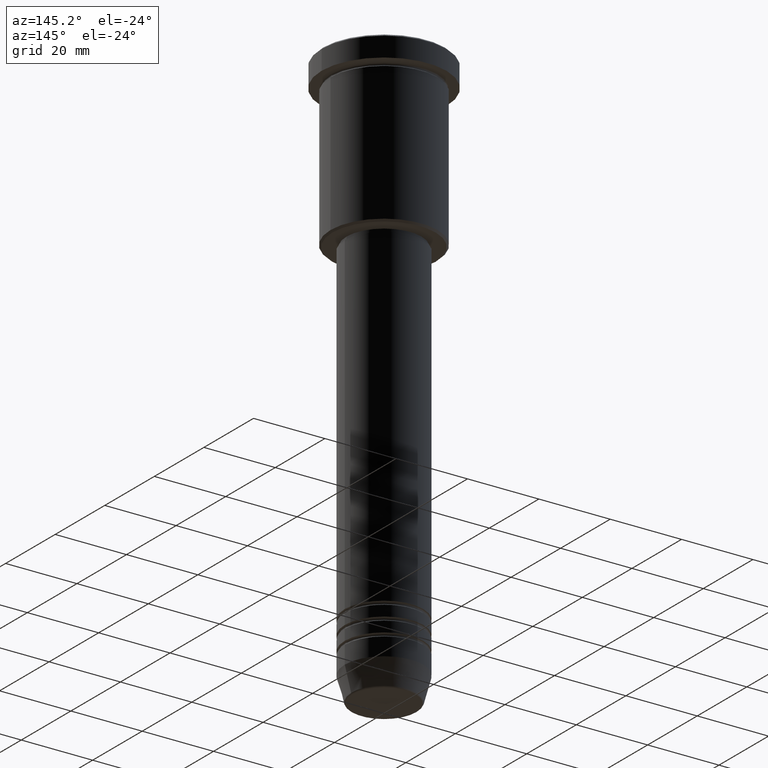
[diagram: clean part render]
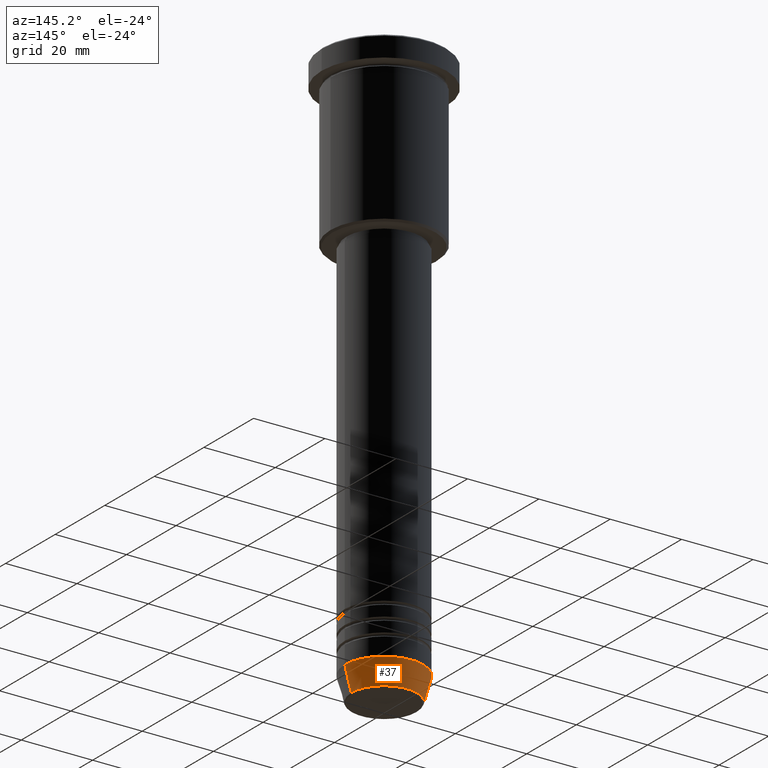
[diagram: same view with one face highlighted and labeled with its STEP entity id]
A machine part, auxiliary view. The second image highlights one B-rep face of the part: STEP entity #37.
In plain terms, the highlighted conical surface has half-angle 15 deg.
Its self-contained STEP definition (entity closure, byte-faithful):
#16 = ORIENTED_EDGE ( 'NONE', *, *, #826, .T. ) ;
#29 = EDGE_LOOP ( 'NONE', ( #16, #833, #995, #440 ) ) ;
#37 = ADVANCED_FACE ( 'NONE', ( #583 ), #1075, .T. ) ;
#38 = LINE ( 'NONE', #954, #415 ) ;
#84 = CARTESIAN_POINT ( 'NONE',  ( -11.00000000000000000, 1.347111479062088405E-15, -154.0000000000000284 ) ) ;
#98 = CARTESIAN_POINT ( 'NONE',  ( 11.00000000000000000, 0.000000000000000000, -154.0000000000000284 ) ) ;
#121 = EDGE_CURVE ( 'NONE', #187, #974, #257, .T. ) ;
#124 = CARTESIAN_POINT ( 'NONE',  ( 0.000000000000000000, 0.000000000000000000, -154.0000000000000284 ) ) ;
#128 = DIRECTION ( 'NONE',  ( 1.000000000000000000, 0.000000000000000000, 0.000000000000000000 ) ) ;
#131 = CARTESIAN_POINT ( 'NONE',  ( 0.000000000000000000, 0.000000000000000000, -154.0000000000000284 ) ) ;
#187 = VERTEX_POINT ( 'NONE', #98 ) ;
#257 = CIRCLE ( 'NONE', #503, 11.00000000000000000 ) ;
#305 = CARTESIAN_POINT ( 'NONE',  ( 0.000000000000000000, 0.000000000000000000, -160.6294095225512706 ) ) ;
#330 = VERTEX_POINT ( 'NONE', #937 ) ;
#391 = EDGE_CURVE ( 'NONE', #330, #187, #38, .T. ) ;
#415 = VECTOR ( 'NONE', #1153, 1000.000000000000000 ) ;
#440 = ORIENTED_EDGE ( 'NONE', *, *, #391, .F. ) ;
#503 = AXIS2_PLACEMENT_3D ( 'NONE', #131, #967, #881 ) ;
#511 = DIRECTION ( 'NONE',  ( -0.2588190451025213501, 3.169619151431772337E-17, 0.9659258262890680902 ) ) ;
#557 = AXIS2_PLACEMENT_3D ( 'NONE', #124, #952, #769 ) ;
#559 = AXIS2_PLACEMENT_3D ( 'NONE', #305, #948, #128 ) ;
#583 = FACE_OUTER_BOUND ( 'NONE', #29, .T. ) ;
#586 = LINE ( 'NONE', #880, #1102 ) ;
#611 = CARTESIAN_POINT ( 'NONE',  ( -9.223655072137189492, 1.238341722557647202E-15, -160.6294095225512706 ) ) ;
#658 = EDGE_CURVE ( 'NONE', #1043, #974, #586, .T. ) ;
#758 = CIRCLE ( 'NONE', #559, 9.223655072137189492 ) ;
#769 = DIRECTION ( 'NONE',  ( 1.000000000000000000, 0.000000000000000000, 0.000000000000000000 ) ) ;
#826 = EDGE_CURVE ( 'NONE', #330, #1043, #758, .T. ) ;
#833 = ORIENTED_EDGE ( 'NONE', *, *, #658, .T. ) ;
#880 = CARTESIAN_POINT ( 'NONE',  ( -11.00000000000000000, 1.347111479062088405E-15, -154.0000000000000284 ) ) ;
#881 = DIRECTION ( 'NONE',  ( 1.000000000000000000, 0.000000000000000000, 0.000000000000000000 ) ) ;
#937 = CARTESIAN_POINT ( 'NONE',  ( 9.223655072137189492, 0.000000000000000000, -160.6294095225512706 ) ) ;
#948 = DIRECTION ( 'NONE',  ( -0.000000000000000000, -0.000000000000000000, 1.000000000000000000 ) ) ;
#952 = DIRECTION ( 'NONE',  ( -0.000000000000000000, -0.000000000000000000, 1.000000000000000000 ) ) ;
#954 = CARTESIAN_POINT ( 'NONE',  ( 11.00000000000000000, 0.000000000000000000, -154.0000000000000284 ) ) ;
#967 = DIRECTION ( 'NONE',  ( -0.000000000000000000, -0.000000000000000000, 1.000000000000000000 ) ) ;
#974 = VERTEX_POINT ( 'NONE', #84 ) ;
#995 = ORIENTED_EDGE ( 'NONE', *, *, #121, .F. ) ;
#1043 = VERTEX_POINT ( 'NONE', #611 ) ;
#1075 = CONICAL_SURFACE ( 'NONE', #557, 11.00000000000000000, 0.2617993877991500740 ) ;
#1102 = VECTOR ( 'NONE', #511, 1000.000000000000000 ) ;
#1153 = DIRECTION ( 'NONE',  ( 0.2588190451025213501, 0.000000000000000000, 0.9659258262890680902 ) ) ;